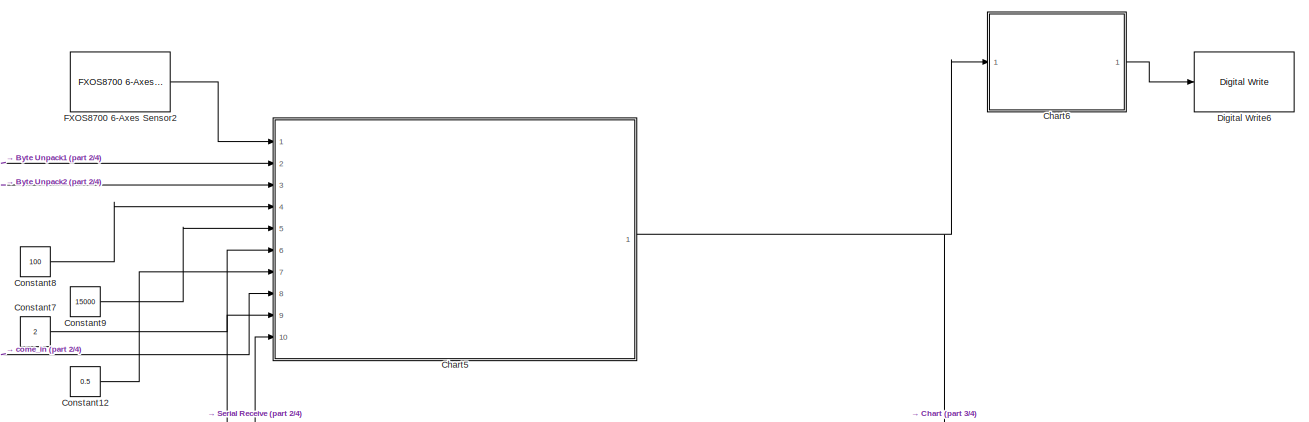
[diagram: root canvas - part 1/4, top center region]
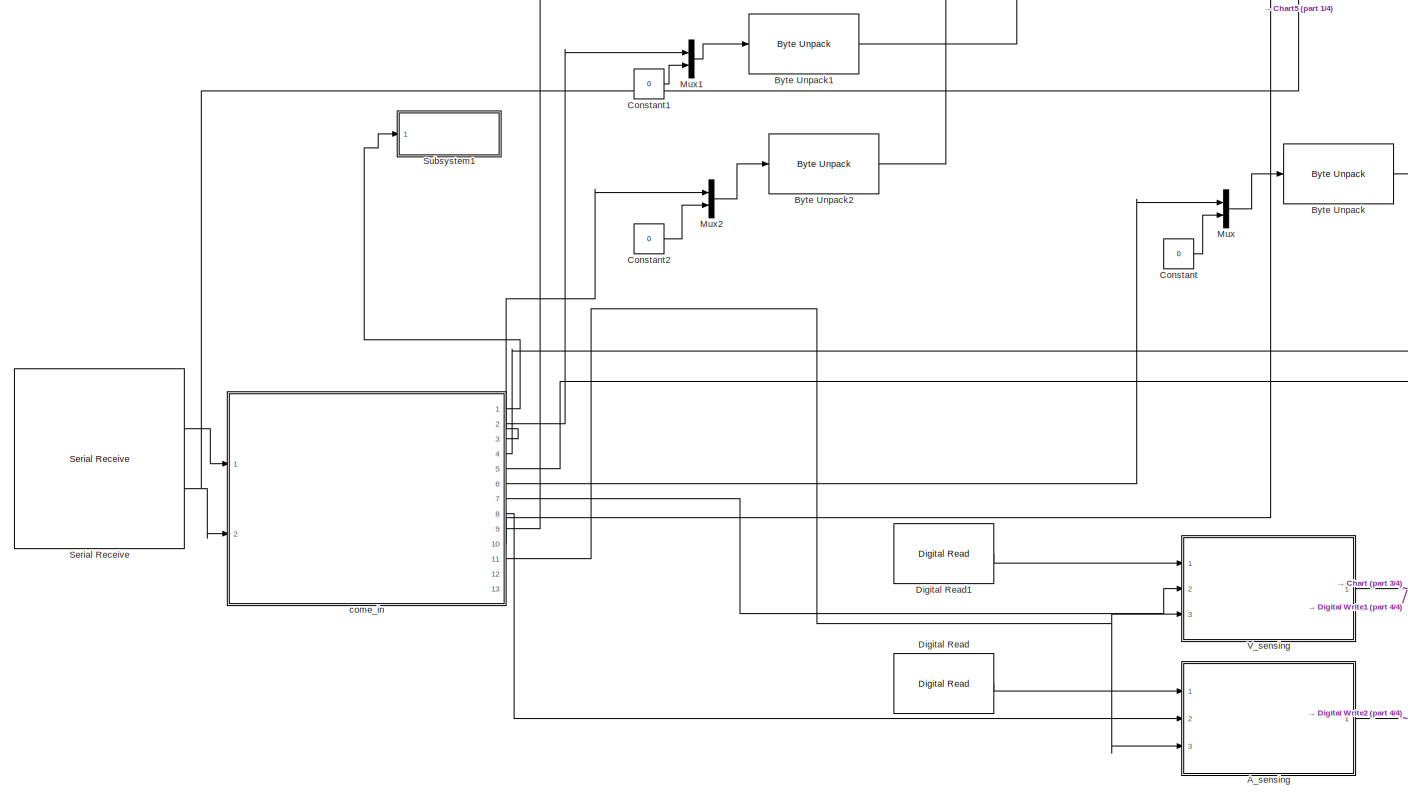
[diagram: root canvas - part 2/4, bottom left region]
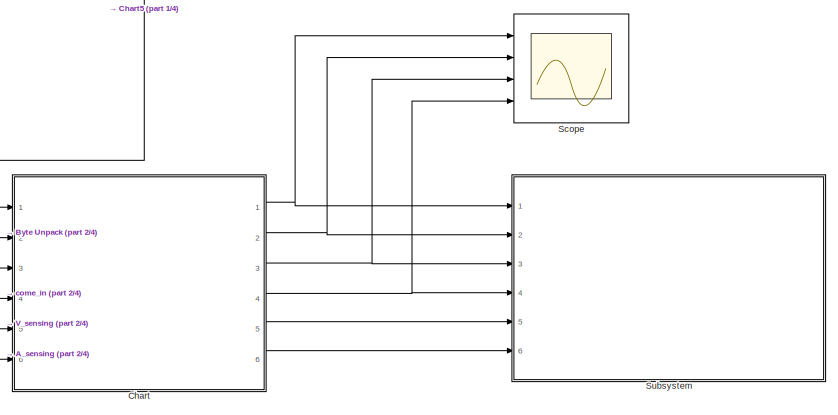
[diagram: root canvas - part 3/4, middle right region]
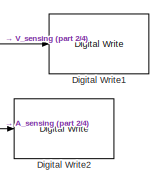
[diagram: root canvas - part 4/4, bottom center region]
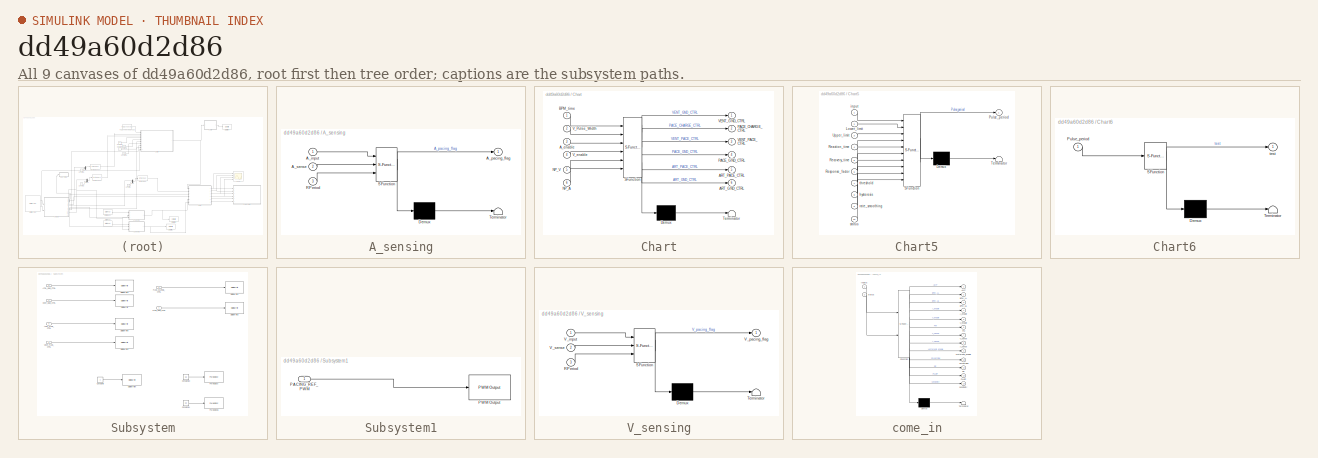
[diagram: thumbnail index - all 9 canvases of the model, root first then tree order]
MODEL slx_dd49a60d2d86
KIND model
CONFIG AbsTol = auto
CONFIG EnableMultiTasking = on
CONFIG FixedStep = 1e-3
CONFIG MaxStep = auto
CONFIG MinStep = auto
CONFIG RelTol = 1e-3
CONFIG SampleTimeConstraint = Unconstrained
CONFIG Solver = FixedStepAuto
CONFIG SolverName = FixedStepAuto
CONFIG StartTime = 0.0
CONFIG StopTime = inf
BLOCK [SubSystem] A_sensing
  ErrorFcn = Stateflow.Translate.translate
  PermitHierarchicalResolution = ExplicitOnly
  Ports = [3, 1]
  RequestExecContextInheritance = off
  SFBlockType = Chart
  TreatAsAtomicUnit = on
  Variant = off
BLOCK [Demux] A_sensing/ Demux 
  Outputs = 1
  Ports = [1, 1]
BLOCK [S-Function] A_sensing/ SFunction 
  EnableBusSupport = on
  FunctionName = sf_sfun
  PortCounts = [3 2]
  Ports = [3, 2]
  SFcnIsStateOwnerBlock = off
  SFunctionDeploymentMode = off
  Tag = Stateflow S-Function test2_Pace_UART 2
BLOCK [Terminator] A_sensing/ Terminator 
BLOCK [Inport] A_sensing/A_input
  IconDisplay = Port number
BLOCK [Outport] A_sensing/A_pacing_flag
  IconDisplay = Port number
BLOCK [Inport] A_sensing/A_sense
  IconDisplay = Port number
  Port = 2
BLOCK [Inport] A_sensing/RPeriod
  IconDisplay = Port number
  Port = 3
BLOCK [Reference] Byte Unpack  REF=etargetslib/Byte Unpack
  Ports = [1, 1]
  SourceBlock = etargetslib/Byte Unpack
  SourceType = Byte Unpack
BLOCK [Reference] Byte Unpack1  REF=etargetslib/Byte Unpack
  Ports = [1, 1]
  SourceBlock = etargetslib/Byte Unpack
  SourceType = Byte Unpack
BLOCK [Reference] Byte Unpack2  REF=etargetslib/Byte Unpack
  Ports = [1, 1]
  SourceBlock = etargetslib/Byte Unpack
  SourceType = Byte Unpack
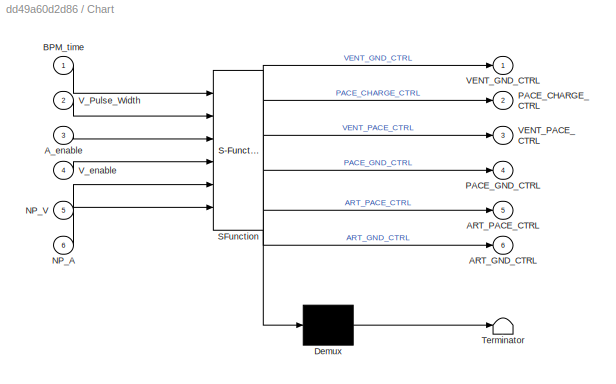
BLOCK [SubSystem] Chart
  ErrorFcn = Stateflow.Translate.translate
  PermitHierarchicalResolution = ExplicitOnly
  Ports = [6, 6]
  RequestExecContextInheritance = off
  SFBlockType = Chart
  TreatAsAtomicUnit = on
  Variant = off
BLOCK [Demux] Chart/ Demux 
  Outputs = 1
  Ports = [1, 1]
BLOCK [S-Function] Chart/ SFunction 
  EnableBusSupport = on
  FunctionName = sf_sfun
  PortCounts = [6 7]
  Ports = [6, 7]
  SFcnIsStateOwnerBlock = off
  SFunctionDeploymentMode = off
  Tag = Stateflow S-Function test2_Pace_UART 3
BLOCK [Terminator] Chart/ Terminator 
BLOCK [Outport] Chart/ART_GND_CTRL
  IconDisplay = Port number
  Port = 6
BLOCK [Outport] Chart/ART_PACE_CTRL
  IconDisplay = Port number
  Port = 5
BLOCK [Inport] Chart/A_enable
  IconDisplay = Port number
  Port = 3
BLOCK [Inport] Chart/BPM_time
  IconDisplay = Port number
BLOCK [Inport] Chart/NP_A
  IconDisplay = Port number
  Port = 6
BLOCK [Inport] Chart/NP_V
  IconDisplay = Port number
  Port = 5
BLOCK [Outport] Chart/PACE_CHARGE_CTRL
  IconDisplay = Port number
  Port = 2
BLOCK [Outport] Chart/PACE_GND_CTRL
  IconDisplay = Port number
  Port = 4
BLOCK [Outport] Chart/VENT_GND_CTRL
  IconDisplay = Port number
BLOCK [Outport] Chart/VENT_PACE_CTRL
  IconDisplay = Port number
  Port = 3
BLOCK [Inport] Chart/V_Pulse_Width
  IconDisplay = Port number
  Port = 2
BLOCK [Inport] Chart/V_enable
  IconDisplay = Port number
  Port = 4
BLOCK [SubSystem] Chart5
  ErrorFcn = Stateflow.Translate.translate
  PermitHierarchicalResolution = ExplicitOnly
  Ports = [10, 1]
  RequestExecContextInheritance = off
  SFBlockType = Chart
  TreatAsAtomicUnit = on
  Variant = off
BLOCK [Demux] Chart5/ Demux 
  Outputs = 1
  Ports = [1, 1]
BLOCK [S-Function] Chart5/ SFunction 
  EnableBusSupport = on
  FunctionName = sf_sfun
  PortCounts = [10 2]
  Ports = [10, 2]
  SFcnIsStateOwnerBlock = off
  SFunctionDeploymentMode = off
  Tag = Stateflow S-Function test2_Pace_UART 9
BLOCK [Terminator] Chart5/ Terminator 
BLOCK [Inport] Chart5/Lower_limit
  IconDisplay = Port number
  Port = 2
BLOCK [Outport] Chart5/Pulse_period
  IconDisplay = Port number
BLOCK [Inport] Chart5/Reaction_time
  IconDisplay = Port number
  Port = 4
BLOCK [Inport] Chart5/Recovery_time
  IconDisplay = Port number
  Port = 5
BLOCK [Inport] Chart5/Response_factor
  IconDisplay = Port number
  Port = 6
BLOCK [Inport] Chart5/Upper_limit
  IconDisplay = Port number
  Port = 3
BLOCK [Inport] Chart5/hysteresis
  IconDisplay = Port number
  Port = 8
BLOCK [Inport] Chart5/input
  IconDisplay = Port number
BLOCK [Inport] Chart5/rate_smoothing
  IconDisplay = Port number
  Port = 9
BLOCK [Inport] Chart5/status
  IconDisplay = Port number
  Port = 10
BLOCK [Inport] Chart5/threshold
  IconDisplay = Port number
  Port = 7
BLOCK [SubSystem] Chart6
  ErrorFcn = Stateflow.Translate.translate
  PermitHierarchicalResolution = ExplicitOnly
  Ports = [1, 1]
  RequestExecContextInheritance = off
  SFBlockType = Chart
  TreatAsAtomicUnit = on
  Variant = off
BLOCK [Demux] Chart6/ Demux 
  Outputs = 1
  Ports = [1, 1]
BLOCK [S-Function] Chart6/ SFunction 
  EnableBusSupport = on
  FunctionName = sf_sfun
  PortCounts = [1 2]
  Ports = [1, 2]
  SFcnIsStateOwnerBlock = off
  SFunctionDeploymentMode = off
  Tag = Stateflow S-Function test2_Pace_UART 10
BLOCK [Terminator] Chart6/ Terminator 
BLOCK [Inport] Chart6/Pulse_period
  IconDisplay = Port number
BLOCK [Outport] Chart6/test
  IconDisplay = Port number
BLOCK [Constant] Constant
  OutDataTypeStr = uint8
  Value = 0
BLOCK [Constant] Constant1
  OutDataTypeStr = uint8
  Value = 0
BLOCK [Constant] Constant12
  Value = 0.5
BLOCK [Constant] Constant2
  OutDataTypeStr = uint8
  Value = 0
BLOCK [Constant] Constant7
  Value = 2
BLOCK [Constant] Constant8
  Value = 100
BLOCK [Constant] Constant9
  Value = 15000
BLOCK [Reference] Digital Read  REF=frdmk64flib/Digital Read
  Ports = [0, 1]
  SourceBlock = frdmk64flib/Digital Read
  SourceProductBaseCode = EC_FRDM_K64F
  SourceProductName = Simulink Coder Support Package for NXP FRDM-K64F Board
  SourceType = freedomk64f.DigitalRead
BLOCK [Reference] Digital Read1  REF=frdmk64flib/Digital Read
  Ports = [0, 1]
  SourceBlock = frdmk64flib/Digital Read
  SourceProductBaseCode = EC_FRDM_K64F
  SourceProductName = Simulink Coder Support Package for NXP FRDM-K64F Board
  SourceType = freedomk64f.DigitalRead
BLOCK [Reference] Digital Write1  REF=frdmk64flib/Digital Write
  Ports = [1]
  SourceBlock = frdmk64flib/Digital Write
  SourceProductBaseCode = EC_FRDM_K64F
  SourceProductName = Simulink Coder Support Package for NXP FRDM-K64F Board
  SourceType = freedomk64f.DigitalWrite
BLOCK [Reference] Digital Write2  REF=frdmk64flib/Digital Write
  Ports = [1]
  SourceBlock = frdmk64flib/Digital Write
  SourceProductBaseCode = EC_FRDM_K64F
  SourceProductName = Simulink Coder Support Package for NXP FRDM-K64F Board
  SourceType = freedomk64f.DigitalWrite
BLOCK [Reference] Digital Write6  REF=frdmk64flib/Digital Write
  Ports = [1]
  SourceBlock = frdmk64flib/Digital Write
  SourceProductBaseCode = EC_FRDM_K64F
  SourceProductName = Simulink Coder Support Package for NXP FRDM-K64F Board
  SourceType = freedomk64f.DigitalWrite
BLOCK [Reference] FXOS8700 6-Axes Sensor2  REF=frdmk64flib/FXOS8700 6-Axes Sensor
  Ports = [0, 1]
  SourceBlock = frdmk64flib/FXOS8700 6-Axes Sensor
  SourceProductBaseCode = EC_FRDM_K64F
  SourceProductName = Simulink Coder Support Package for NXP FRDM-K64F Board
  SourceType = freedomk64f.fxos8700
BLOCK [Mux] Mux
  DisplayOption = bar
  Inputs = 2
  Ports = [2, 1]
BLOCK [Mux] Mux1
  DisplayOption = bar
  Inputs = 2
  Ports = [2, 1]
BLOCK [Mux] Mux2
  DisplayOption = bar
  Inputs = 2
  Ports = [2, 1]
BLOCK [Scope] Scope
  NumInputPorts = 4
  Ports = [4]
  ScopeSpecificationString = Simulink.scopes.TimeScopeBlockCfg('CurrentConfiguration', extmgr.ConfigurationSet(extmgr.Configuration('Core','General UI',true),extmgr.Configuration('Core','Source UI',true),extmgr.Configuration('Sources','WiredSimulink',true),extmgr.Configuration('Visuals','Time Domain',true,'SerializedDisplays',{struct('MinYLimReal','-0.125','MaxYLimReal','1.125','YLabelReal','','MinYLimMag','0.00000','MaxYLimM...<+1451ch>
BLOCK [Reference] Serial Receive  REF=frdmk64flib/Serial Receive
  Ports = [0, 2]
  SourceBlock = frdmk64flib/Serial Receive
  SourceProductBaseCode = EC_FRDM_K64F
  SourceProductName = Simulink Coder Support Package for NXP FRDM-K64F Board
  SourceType = freedomk64f.SCIRead
BLOCK [SubSystem] Subsystem
  Ports = [6]
  RequestExecContextInheritance = off
  Variant = off
BLOCK [Inport] Subsystem/ATRL_GND_CTRL
  IconDisplay = Port number
  Port = 6
BLOCK [Inport] Subsystem/ATRL_PACE_CTRL
  IconDisplay = Port number
  Port = 5
BLOCK [Constant] Subsystem/Constant10
  Value = 65
BLOCK [Constant] Subsystem/Constant11
  Value = 65
BLOCK [Constant] Subsystem/Constant9
BLOCK [Reference] Subsystem/Digital Write  REF=frdmk64flib/Digital Write
  Ports = [1]
  SourceBlock = frdmk64flib/Digital Write
  SourceProductBaseCode = EC_FRDM_K64F
  SourceProductName = Simulink Coder Support Package for NXP FRDM-K64F Board
  SourceType = freedomk64f.DigitalWrite
BLOCK [Reference] Subsystem/Digital Write1  REF=frdmk64flib/Digital Write
  Ports = [1]
  SourceBlock = frdmk64flib/Digital Write
  SourceProductBaseCode = EC_FRDM_K64F
  SourceProductName = Simulink Coder Support Package for NXP FRDM-K64F Board
  SourceType = freedomk64f.DigitalWrite
BLOCK [Reference] Subsystem/Digital Write2  REF=frdmk64flib/Digital Write
  Ports = [1]
  SourceBlock = frdmk64flib/Digital Write
  SourceProductBaseCode = EC_FRDM_K64F
  SourceProductName = Simulink Coder Support Package for NXP FRDM-K64F Board
  SourceType = freedomk64f.DigitalWrite
BLOCK [Reference] Subsystem/Digital Write3  REF=frdmk64flib/Digital Write
  Ports = [1]
  SourceBlock = frdmk64flib/Digital Write
  SourceProductBaseCode = EC_FRDM_K64F
  SourceProductName = Simulink Coder Support Package for NXP FRDM-K64F Board
  SourceType = freedomk64f.DigitalWrite
BLOCK [Reference] Subsystem/Digital Write4  REF=frdmk64flib/Digital Write
  Ports = [1]
  SourceBlock = frdmk64flib/Digital Write
  SourceProductBaseCode = EC_FRDM_K64F
  SourceProductName = Simulink Coder Support Package for NXP FRDM-K64F Board
  SourceType = freedomk64f.DigitalWrite
BLOCK [Reference] Subsystem/Digital Write5  REF=frdmk64flib/Digital Write
  Ports = [1]
  SourceBlock = frdmk64flib/Digital Write
  SourceProductBaseCode = EC_FRDM_K64F
  SourceProductName = Simulink Coder Support Package for NXP FRDM-K64F Board
  SourceType = freedomk64f.DigitalWrite
BLOCK [Reference] Subsystem/Digital Write6  REF=frdmk64flib/Digital Write
  Ports = [1]
  SourceBlock = frdmk64flib/Digital Write
  SourceProductBaseCode = EC_FRDM_K64F
  SourceProductName = Simulink Coder Support Package for NXP FRDM-K64F Board
  SourceType = freedomk64f.DigitalWrite
BLOCK [Inport] Subsystem/PACE_CHARGE_CTRL
  IconDisplay = Port number
  Port = 2
BLOCK [Inport] Subsystem/PACE_GND_CTRL
  IconDisplay = Port number
  Port = 4
BLOCK [Reference] Subsystem/PWM Output  REF=frdmk64flib/PWM Output
  Ports = [1]
  SourceBlock = frdmk64flib/PWM Output
  SourceProductBaseCode = EC_FRDM_K64F
  SourceProductName = Simulink Coder Support Package for NXP FRDM-K64F Board
  SourceType = freedomk64f.PWMOutput
BLOCK [Reference] Subsystem/PWM Output1  REF=frdmk64flib/PWM Output
  Ports = [1]
  SourceBlock = frdmk64flib/PWM Output
  SourceProductBaseCode = EC_FRDM_K64F
  SourceProductName = Simulink Coder Support Package for NXP FRDM-K64F Board
  SourceType = freedomk64f.PWMOutput
BLOCK [Inport] Subsystem/VENT_GND_CTRL
  IconDisplay = Port number
BLOCK [Inport] Subsystem/VENT_PACE_CTRL
  IconDisplay = Port number
  Port = 3
BLOCK [SubSystem] Subsystem1
  Ports = [1]
  RequestExecContextInheritance = off
  Variant = off
BLOCK [Inport] Subsystem1/PACING_REF_PWM
  IconDisplay = Port number
BLOCK [Reference] Subsystem1/PWM Output  REF=frdmk64flib/PWM Output
  Ports = [1]
  SourceBlock = frdmk64flib/PWM Output
  SourceProductBaseCode = EC_FRDM_K64F
  SourceProductName = Simulink Coder Support Package for NXP FRDM-K64F Board
  SourceType = freedomk64f.PWMOutput
BLOCK [SubSystem] V_sensing
  ErrorFcn = Stateflow.Translate.translate
  PermitHierarchicalResolution = ExplicitOnly
  Ports = [3, 1]
  RequestExecContextInheritance = off
  SFBlockType = Chart
  TreatAsAtomicUnit = on
  Variant = off
BLOCK [Demux] V_sensing/ Demux 
  Outputs = 1
  Ports = [1, 1]
BLOCK [S-Function] V_sensing/ SFunction 
  EnableBusSupport = on
  FunctionName = sf_sfun
  PortCounts = [3 2]
  Ports = [3, 2]
  SFcnIsStateOwnerBlock = off
  SFunctionDeploymentMode = off
  Tag = Stateflow S-Function test2_Pace_UART 4
BLOCK [Terminator] V_sensing/ Terminator 
BLOCK [Inport] V_sensing/RPeriod
  IconDisplay = Port number
  Port = 3
BLOCK [Inport] V_sensing/V_input
  IconDisplay = Port number
BLOCK [Outport] V_sensing/V_pacing_flag
  IconDisplay = Port number
BLOCK [Inport] V_sensing/V_sense
  IconDisplay = Port number
  Port = 2
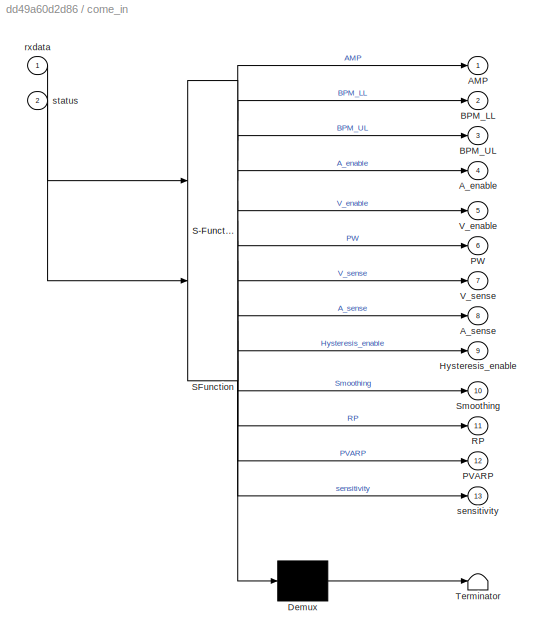
BLOCK [SubSystem] come_in
  ErrorFcn = Stateflow.Translate.translate
  PermitHierarchicalResolution = ExplicitOnly
  Ports = [2, 13]
  RequestExecContextInheritance = off
  SFBlockType = Chart
  TreatAsAtomicUnit = on
  Variant = off
BLOCK [Demux] come_in/ Demux 
  Outputs = 1
  Ports = [1, 1]
BLOCK [S-Function] come_in/ SFunction 
  EnableBusSupport = on
  FunctionName = sf_sfun
  PortCounts = [2 14]
  Ports = [2, 14]
  SFcnIsStateOwnerBlock = off
  SFunctionDeploymentMode = off
  Tag = Stateflow S-Function test2_Pace_UART 1
BLOCK [Terminator] come_in/ Terminator 
BLOCK [Outport] come_in/AMP
  IconDisplay = Port number
BLOCK [Outport] come_in/A_enable
  IconDisplay = Port number
  Port = 4
BLOCK [Outport] come_in/A_sense
  IconDisplay = Port number
  Port = 8
BLOCK [Outport] come_in/BPM_LL
  IconDisplay = Port number
  Port = 2
BLOCK [Outport] come_in/BPM_UL
  IconDisplay = Port number
  Port = 3
BLOCK [Outport] come_in/Hysteresis_enable
  IconDisplay = Port number
  Port = 9
BLOCK [Outport] come_in/PVARP
  IconDisplay = Port number
  Port = 12
BLOCK [Outport] come_in/PW
  IconDisplay = Port number
  Port = 6
BLOCK [Outport] come_in/RP
  IconDisplay = Port number
  Port = 11
BLOCK [Outport] come_in/Smoothing
  IconDisplay = Port number
  Port = 10
BLOCK [Outport] come_in/V_enable
  IconDisplay = Port number
  Port = 5
BLOCK [Outport] come_in/V_sense
  IconDisplay = Port number
  Port = 7
BLOCK [Inport] come_in/rxdata
  IconDisplay = Port number
BLOCK [Outport] come_in/sensitivity
  IconDisplay = Port number
  Port = 13
BLOCK [Inport] come_in/status
  IconDisplay = Port number
  Port = 2
NET A_sensing:1 -> Chart:6, Digital Write2:1
LINE Byte Unpack1:1 -> Chart5:2
LINE Byte Unpack2:1 -> Chart5:3
LINE Byte Unpack:1 -> Chart:2
NET Chart5:1 -> Chart6:1, Chart:1
LINE Chart6:1 -> Digital Write6:1
NET Chart:1 -> Scope:1, Subsystem:1
NET Chart:2 -> Scope:2, Subsystem:2
NET Chart:3 -> Scope:3, Subsystem:3
NET Chart:4 -> Scope:4, Subsystem:4
LINE Chart:5 -> Subsystem:5
LINE Chart:6 -> Subsystem:6
LINE Constant12:1 -> Chart5:7
LINE Constant1:1 -> Mux1:2
LINE Constant2:1 -> Mux2:2
LINE Constant7:1 -> Chart5:6
LINE Constant8:1 -> Chart5:4
LINE Constant9:1 -> Chart5:5
LINE Constant:1 -> Mux:2
LINE Digital Read1:1 -> V_sensing:1
LINE Digital Read:1 -> A_sensing:1
LINE FXOS8700 6-Axes Sensor2:1 -> Chart5:1
LINE Mux1:1 -> Byte Unpack1:1
LINE Mux2:1 -> Byte Unpack2:1
LINE Mux:1 -> Byte Unpack:1
LINE Serial Receive:1 -> come_in:1
NET Serial Receive:2 -> Chart5:10, come_in:2
LINE Subsystem/ATRL_GND_CTRL:1 -> Subsystem/Digital Write4:1
LINE Subsystem/ATRL_PACE_CTRL:1 -> Subsystem/Digital Write5:1
LINE Subsystem/Constant10:1 -> Subsystem/PWM Output:1
LINE Subsystem/Constant11:1 -> Subsystem/PWM Output1:1
LINE Subsystem/Constant9:1 -> Subsystem/Digital Write6:1
LINE Subsystem/PACE_CHARGE_CTRL:1 -> Subsystem/Digital Write1:1
LINE Subsystem/PACE_GND_CTRL:1 -> Subsystem/Digital Write3:1
LINE Subsystem/VENT_GND_CTRL:1 -> Subsystem/Digital Write:1
LINE Subsystem/VENT_PACE_CTRL:1 -> Subsystem/Digital Write2:1
LINE Subsystem1/PACING_REF_PWM:1 -> Subsystem1/PWM Output:1
NET V_sensing:1 -> Chart:5, Digital Write1:1
LINE come_in:1 -> Subsystem1:1
LINE come_in:10 -> Chart5:9
NET come_in:11 -> A_sensing:3, V_sensing:3
LINE come_in:2 -> Mux1:1
LINE come_in:3 -> Mux2:1
LINE come_in:4 -> Chart:3
LINE come_in:5 -> Chart:4
LINE come_in:6 -> Mux:1
LINE come_in:7 -> V_sensing:2
LINE come_in:8 -> A_sensing:2
LINE come_in:9 -> Chart5:8
note: NET lines group one-source signal fan-out (src -> all destinations, sorted); 1:1 wires keep LINE
CHART come_in states=8 transitions=20
  STATE_LABEL 'SET_RARAM\nentry:\nBPM_UL = rxdata(3);\nBPM_LL = rxdata(4);\nAMP = rxdata(5);\nPW = rxdata(6);'
  STATE_LABEL 'INITIAL\nentry:\nBPM_UL = 60;\nBPM_LL = 60;\nAMP = 60;\nPW = 100;\nA_enable = 1;\nV_enable = 0;\nA_sense = 1;\nV_sense = 0;\nRP = 500;\nHysteresis_enable = 0;\nSmoothing = 0;\nPVARP = 0;\n'
  STATE_LABEL 'STANDBY'
  STATE_LABEL "SET_RARAM1\nentry:\nBPM_LL = rxdata(3);\nBPM_UL = rxdata(4);\nAMP = rxdata(5);\nPW = rxdata(6);\nif (rxdata(7) == hex2dec('1'))\n    A_enable = 1;\n    V_enable = 0;\n    V_sense= 0;\n    A_sense = rxdata(8);\n    sensitivity = rxdata(9);\n    RP = 10* typecast(rxdata(10:11), 'uint16');\n    Hysteresis_enable = rxdata(12);\n    Smoothing = rxdata(13);\n    PVARP = typecast(rxdata(14:15), 'uint16');\nelseif (rxdat...<+558ch>"
  STATE_LABEL "VOO_or_VVI\nentry:\nA_enable = 0;\nV_enable = 1;\nA_sense = 0;\nV_sense = rxdata(8);\nsensitivity = rxdata(9);\nRP = 10*typecast(rxdata(10:11), 'uint16');\nHysteresis_enable = rxdata(12);\nSmoothing = rxdata(13);\nPVARP = typecast(rxdata(14:15), 'uint16');\n"
  STATE_LABEL "AOO_or_AAI\nentry:\nA_enable = 1;\nV_enable = 0;\nV_sense = 0;\nA_sense = rxdata(8);\nsensitivity = rxdata(9);\nRP = 10* typecast(rxdata(10:11), 'uint16');\nHysteresis_enable = rxdata(12);\nSmoothing = rxdata(13);\nPVARP = typecast(rxdata(14:15), 'uint16');\n"
  STATE_LABEL 'INITIAL1\nentry:\nBPM_UL = 120;\nBPM_LL = 60;\nAMP = 60;\nPW = 100;\nA_enable = 1;\nV_enable = 0;\nA_sense = 1;\nV_sense = 0;\nRP = 50;\nHysteresis_enable = 0;\nSmoothing = 0;\nPVARP = 0;\n'
  STATE_LABEL 'STANDBY1'
CHART A_sensing states=2 transitions=4
  STATE_LABEL 'SENSING_A_wait\nentry:\nA_pacing_flag = 0;\n'
  STATE_LABEL 'A_pace_sensed\nentry:\nA_pacing_flag = 1;'
CHART Chart states=7 transitions=17
  STATE_LABEL 'Initial_state\nentry:\nART_PACE_CTRL = false;\nART_GND_CTRL = true\nVENT_PACE_CTRL = false;\nVENT_GND_CTRL = true;\nPACE_CHARGE_CTRL = true;\nPACE_GND_CTRL = true;'
  STATE_LABEL 'Charging_state_V\nentry:\nPACE_CHARGE_CTRL = true;\nVENT_PACE_CTRL = false;\nVENT_GND_CTRL = true;\nPACE_GND_CTRL = true;\nART_PACE_CTRL = false;\nART_GND_CTRL = true;'
  STATE_LABEL 'Charging_state_A\nentry:\nPACE_CHARGE_CTRL = true;\nART_PACE_CTRL = false;\nART_GND_CTRL = true;\nPACE_GND_CTRL = true;\nVENT_PACE_CTRL = false;\nVENT_GND_CTRL = true;'
  STATE_LABEL 'Delay_state_A\nentry:\nPACE_CHARGE_CTRL = true;\nART_PACE_CTRL = false;\nART_GND_CTRL = true;\nPACE_GND_CTRL = true;\nVENT_PACE_CTRL = false;\nVENT_GND_CTRL = true;'
  STATE_LABEL 'Delay_state_V\nentry:\nPACE_CHARGE_CTRL = true;\nVENT_PACE_CTRL = false;\nVENT_GND_CTRL = true;\nPACE_GND_CTRL = true;\nART_PACE_CTRL = false;\nART_GND_CTRL = true;'
  STATE_LABEL 'Pacing_state_V\nentry:\nPACE_CHARGE_CTRL = false;\nVENT_PACE_CTRL = true;\nVENT_GND_CTRL = false;\nPACE_GND_CTRL = true;\nART_PACE_CTRL = false;\nART_GND_CTRL = true;'
  STATE_LABEL 'Pacing_state\nentry:\nPACE_CHARGE_CTRL = false;\nART_PACE_CTRL = true;\nART_GND_CTRL = false;\nPACE_GND_CTRL = true;\nVENT_PACE_CTRL = false;\nVENT_GND_CTRL = true;'
CHART V_sensing states=2 transitions=4
  STATE_LABEL 'SENSING_V_wait\nentry:\nV_pacing_flag = 0;'
  STATE_LABEL 'V_pacing_sensed\nentry:\nV_pacing_flag = 1;'
CHART Chart5 states=6 transitions=22
  STATE_LABEL 'Initial1\nentry:\nnorm_xy = ((input(1)^2.0) + (input(2)^2.0))^(1/2);\nBPM = Lower_limit;\nPulse_period = uint16(60000/BPM);\ncounter_reaction = 0;\ncounter_recovery = 0;\n'
  STATE_LABEL 'norm_over_state\nentry:\nnorm_xy = ((input(1)^2.0) + (input(2)^2.0))^(1/2);\ncounter_reaction = counter_reaction + 1;\ncounter_recovery = 0;\ncounter_update_increase = 0;\n'
  STATE_LABEL 'norm_below_state\nentry:\nif (BPM > (Lower_limit + Upper_limit)/2)\n    BPM = BPM - Response_factor;\nelse\n    BPM = Lower_limit;\nend\nPulse_period = uint16(60000/BPM);\nnorm_xy = ((input(1)^2.0) + (input(2)^2.0))^(1/2);\ncounter_update = 0;\ncounter_reaction = 0;\ncounter_recovery = counter_recovery + 1;\n'
  STATE_LABEL 'update_input\nentry:\nnorm_xy = ((input(1)^2.0) + (input(2)^2.0))^(1/2);\ncounter_update = counter_update + 1;\ncounter_update_increase = 0;\n'
  STATE_LABEL 'update_input_increase\nentry:\nnorm_xy = ((input(1)^2.0) + (input(2)^2.0))^(1/2);\ncounter_update_increase=counter_update_increase + 1;\n'
  STATE_LABEL 'Increase_rate\nentry:\nif (BPM < Upper_limit)\n    BPM = BPM + Response_factor;\nelse\n    BPM = Upper_limit;\nend\nPulse_period = uint16(60000/BPM);\nnorm_xy = ((input(1)^2.0) + (input(2)^2.0))^(1/2);\ncounter_reaction = 0;\ncounter_update_increase = 0;\ncounter_update = 0;\ncounter_recovery = 0;'
CHART Chart6 states=1 transitions=2
  STATE_LABEL 'state\nentry:\nif (Pulse_period > 856)\n    test = false;\nelse\n    test = true;\nend'
